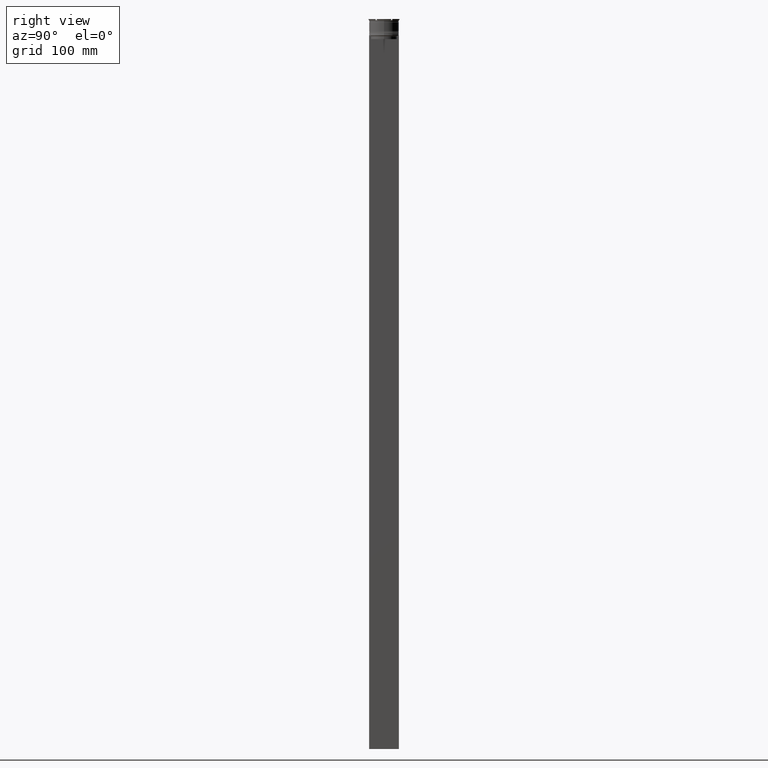
[diagram: clean part render]
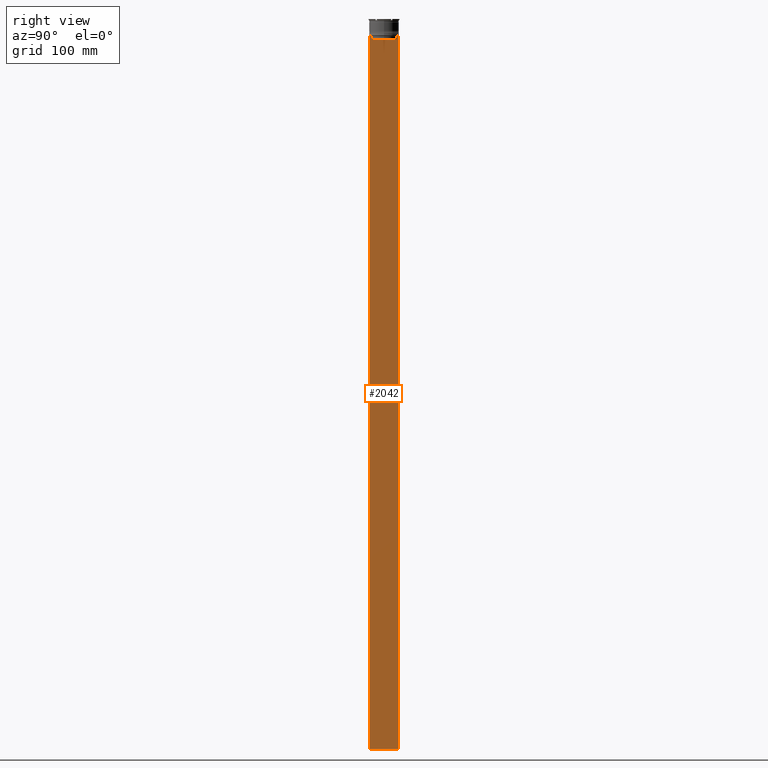
[diagram: same view with one face highlighted and labeled with its STEP entity id]
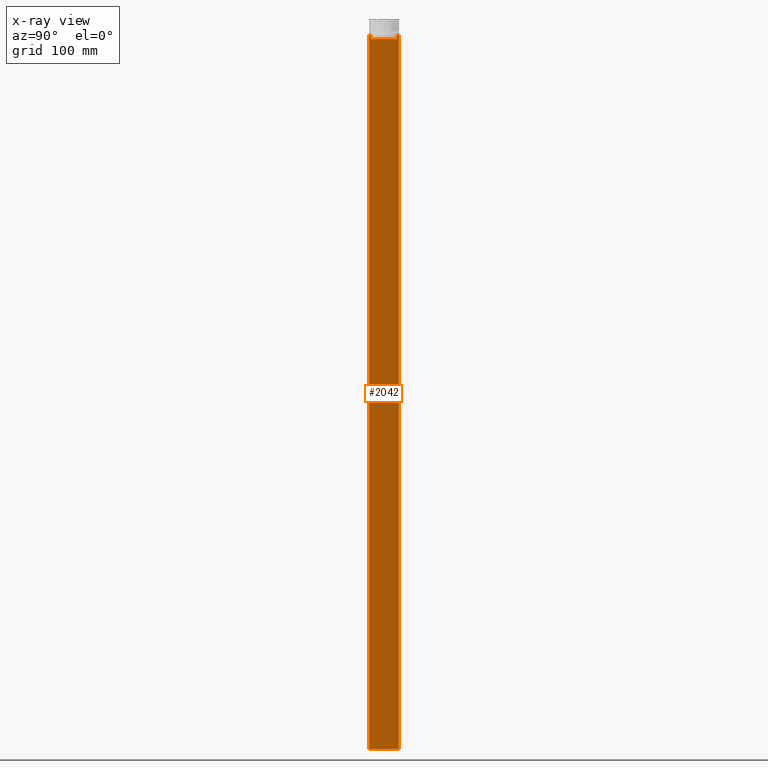
[diagram: x-ray of the same camera — body ghosted, the highlighted face saturated]
A machine part, right view. The second image highlights one B-rep face of the part: STEP entity #2042.
The next image is the same camera in x-ray: the body ghosted, the highlighted face saturated — about 0% of this face is hidden behind the body in this view.
In plain terms, the highlighted planar face has unit normal (-1, 0, 0).
Its self-contained STEP definition (entity closure, byte-faithful):
#9 = CARTESIAN_POINT ( 'NONE',  ( 0.5000000000000000000, 11.05536450345590538, -14.33333719074559376 ) ) ;
#42 = CARTESIAN_POINT ( 'NONE',  ( 0.5000000000000000000, 11.38902980942626719, -14.00000000000000178 ) ) ;
#80 = VERTEX_POINT ( 'NONE', #873 ) ;
#150 = ORIENTED_EDGE ( 'NONE', *, *, #2758, .T. ) ;
#330 = DIRECTION ( 'NONE',  ( 0.000000000000000000, -1.000000000000000000, 0.000000000000000000 ) ) ;
#335 = VERTEX_POINT ( 'NONE', #2355 ) ;
#357 = CARTESIAN_POINT ( 'NONE',  ( 0.5000000000000000000, 10.88852607105296322, -14.50000000000000000 ) ) ;
#370 = ORIENTED_EDGE ( 'NONE', *, *, #438, .T. ) ;
#394 = ORIENTED_EDGE ( 'NONE', *, *, #2616, .F. ) ;
#399 = EDGE_CURVE ( 'NONE', #335, #2804, #2825, .T. ) ;
#430 = CARTESIAN_POINT ( 'NONE',  ( 0.5000000000000000000, 10.88852607105296144, -17.00000000000000000 ) ) ;
#438 = EDGE_CURVE ( 'NONE', #1052, #571, #842, .T. ) ;
#483 = ORIENTED_EDGE ( 'NONE', *, *, #2317, .T. ) ;
#508 = ORIENTED_EDGE ( 'NONE', *, *, #1650, .T. ) ;
#512 = CARTESIAN_POINT ( 'NONE',  ( 0.5000000000000000000, 11.38902980942626719, -14.00000000000000178 ) ) ;
#545 = CARTESIAN_POINT ( 'NONE',  ( 0.5000000000000000000, 12.38991525394746773, -14.00000000000000178 ) ) ;
#563 = LINE ( 'NONE', #1503, #891 ) ;
#571 = VERTEX_POINT ( 'NONE', #2878 ) ;
#620 = VERTEX_POINT ( 'NONE', #357 ) ;
#641 = CARTESIAN_POINT ( 'NONE',  ( 0.5000000000000000000, 12.50000000000000711, -614.0000000000000000 ) ) ;
#647 = LINE ( 'NONE', #2026, #2675 ) ;
#668 = VECTOR ( 'NONE', #330, 1000.000000000000000 ) ;
#669 = ORIENTED_EDGE ( 'NONE', *, *, #1095, .T. ) ;
#692 = VERTEX_POINT ( 'NONE', #512 ) ;
#732 = CARTESIAN_POINT ( 'NONE',  ( 0.5000000000000000000, -12.49999999999999289, 11.01999200639360765 ) ) ;
#739 = EDGE_CURVE ( 'NONE', #2804, #692, #2542, .T. ) ;
#752 = VECTOR ( 'NONE', #1370, 1000.000000000000000 ) ;
#782 = DIRECTION ( 'NONE',  ( 0.000000000000000000, 0.000000000000000000, 1.000000000000000000 ) ) ;
#817 = DIRECTION ( 'NONE',  ( 0.000000000000000000, -1.000000000000000000, 0.000000000000000000 ) ) ;
#826 = LINE ( 'NONE', #2611, #1547 ) ;
#842 = LINE ( 'NONE', #1472, #1924 ) ;
#845 = AXIS2_PLACEMENT_3D ( 'NONE', #2152, #2790, #782 ) ;
#851 = ORIENTED_EDGE ( 'NONE', *, *, #1058, .T. ) ;
#866 = VERTEX_POINT ( 'NONE', #1066 ) ;
#873 = CARTESIAN_POINT ( 'NONE',  ( 0.5000000000000000000, -12.49999999999999289, -614.0000000000000000 ) ) ;
#882 = CARTESIAN_POINT ( 'NONE',  ( 0.5000000000000000000, 10.88852607105296322, 0.000000000000000000 ) ) ;
#891 = VECTOR ( 'NONE', #1462, 1000.000000000000000 ) ;
#956 = CARTESIAN_POINT ( 'NONE',  ( 0.5000000000000000000, -10.88852607105296144, -17.00000000000000000 ) ) ;
#981 = CARTESIAN_POINT ( 'NONE',  ( 0.5000000000000000000, -10.88852607105296322, -14.50000000000000000 ) ) ;
#1052 = VERTEX_POINT ( 'NONE', #956 ) ;
#1058 = EDGE_CURVE ( 'NONE', #1159, #80, #1677, .T. ) ;
#1066 = CARTESIAN_POINT ( 'NONE',  ( 0.5000000000000000000, -11.38902980942626719, -14.00000000000000178 ) ) ;
#1095 = EDGE_CURVE ( 'NONE', #571, #866, #2425, .T. ) ;
#1124 = CARTESIAN_POINT ( 'NONE',  ( 0.5000000000000000000, 10.88852607105296322, -14.50000000000000000 ) ) ;
#1159 = VERTEX_POINT ( 'NONE', #2638 ) ;
#1207 = CARTESIAN_POINT ( 'NONE',  ( 0.5000000000000000000, -12.49999999999999289, -14.00000000000000178 ) ) ;
#1250 = DIRECTION ( 'NONE',  ( 0.000000000000000000, 0.000000000000000000, -1.000000000000000000 ) ) ;
#1370 = DIRECTION ( 'NONE',  ( 0.000000000000000000, -1.000000000000000000, 0.000000000000000000 ) ) ;
#1384 = EDGE_LOOP ( 'NONE', ( #2692, #1432, #1854, #483, #370, #669, #150, #508, #851, #1697, #394, #2282 ) ) ;
#1392 = CARTESIAN_POINT ( 'NONE',  ( 0.5000000000000000000, 10.90000000000000213, -17.00000000000000000 ) ) ;
#1397 = EDGE_CURVE ( 'NONE', #692, #620, #1478, .T. ) ;
#1420 = VERTEX_POINT ( 'NONE', #641 ) ;
#1432 = ORIENTED_EDGE ( 'NONE', *, *, #1397, .T. ) ;
#1443 = DIRECTION ( 'NONE',  ( -0.000000000000000000, -0.000000000000000000, 1.000000000000000000 ) ) ;
#1462 = DIRECTION ( 'NONE',  ( 0.000000000000000000, -1.000000000000000000, 0.000000000000000000 ) ) ;
#1472 = CARTESIAN_POINT ( 'NONE',  ( 0.5000000000000000000, -10.88852607105296322, 0.000000000000000000 ) ) ;
#1478 = B_SPLINE_CURVE_WITH_KNOTS ( 'NONE', 3,
 ( #42, #2266, #9, #1124 ),
 .UNSPECIFIED., .F., .F.,
 ( 4, 4 ),
 ( 0.01935560801904634073, 0.02006307108468586772 ),
 .UNSPECIFIED. ) ;
#1503 = CARTESIAN_POINT ( 'NONE',  ( 0.5000000000000000000, -12.49999999999999289, -14.00000000000000178 ) ) ;
#1547 = VECTOR ( 'NONE', #1250, 1000.000000000000000 ) ;
#1616 = VERTEX_POINT ( 'NONE', #2573 ) ;
#1623 = CARTESIAN_POINT ( 'NONE',  ( 0.5000000000000000000, -11.38902980942626719, -14.00000000000000178 ) ) ;
#1626 = LINE ( 'NONE', #1392, #752 ) ;
#1643 = VECTOR ( 'NONE', #1770, 1000.000000000000000 ) ;
#1650 = EDGE_CURVE ( 'NONE', #1616, #1159, #563, .T. ) ;
#1660 = LINE ( 'NONE', #2556, #2578 ) ;
#1671 = DIRECTION ( 'NONE',  ( 0.000000000000000000, -1.000000000000000000, 0.000000000000000000 ) ) ;
#1677 = LINE ( 'NONE', #732, #2435 ) ;
#1697 = ORIENTED_EDGE ( 'NONE', *, *, #1882, .T. ) ;
#1770 = DIRECTION ( 'NONE',  ( 0.000000000000000000, 0.000000000000000000, -1.000000000000000000 ) ) ;
#1854 = ORIENTED_EDGE ( 'NONE', *, *, #2274, .T. ) ;
#1869 = CARTESIAN_POINT ( 'NONE',  ( 0.5000000000000000000, -11.05536450423839234, -14.33333718996393102 ) ) ;
#1879 = DIRECTION ( 'NONE',  ( 0.000000000000000000, 1.000000000000000000, 0.000000000000000000 ) ) ;
#1882 = EDGE_CURVE ( 'NONE', #80, #1420, #1660, .T. ) ;
#1898 = DIRECTION ( 'NONE',  ( 0.000000000000000000, 0.000000000000000000, -1.000000000000000000 ) ) ;
#1905 = CARTESIAN_POINT ( 'NONE',  ( 0.5000000000000000000, -12.49999999999999289, -14.00000000000000178 ) ) ;
#1924 = VECTOR ( 'NONE', #1443, 1000.000000000000000 ) ;
#2026 = CARTESIAN_POINT ( 'NONE',  ( 0.5000000000000000000, -12.49999999999999289, -14.00000000000000178 ) ) ;
#2042 = ADVANCED_FACE ( 'NONE', ( #2630 ), #2363, .F. ) ;
#2152 = CARTESIAN_POINT ( 'NONE',  ( 0.5000000000000000000, -12.49999999999999289, 11.01999200639360765 ) ) ;
#2176 = VERTEX_POINT ( 'NONE', #430 ) ;
#2266 = CARTESIAN_POINT ( 'NONE',  ( 0.5000000000000000000, 11.22219891375843304, -14.16667035472756808 ) ) ;
#2274 = EDGE_CURVE ( 'NONE', #620, #2176, #2659, .T. ) ;
#2282 = ORIENTED_EDGE ( 'NONE', *, *, #399, .T. ) ;
#2300 = CARTESIAN_POINT ( 'NONE',  ( 0.5000000000000000000, -11.22219891450652973, -14.16667035398018903 ) ) ;
#2317 = EDGE_CURVE ( 'NONE', #2176, #1052, #1626, .T. ) ;
#2349 = VECTOR ( 'NONE', #817, 1000.000000000000000 ) ;
#2355 = CARTESIAN_POINT ( 'NONE',  ( 0.5000000000000000000, 12.50000000000000711, -14.00000000000000178 ) ) ;
#2363 = PLANE ( 'NONE',  #845 ) ;
#2425 = B_SPLINE_CURVE_WITH_KNOTS ( 'NONE', 3,
 ( #981, #1869, #2300, #1623 ),
 .UNSPECIFIED., .F., .F.,
 ( 4, 4 ),
 ( 0.05041323384703226551, 0.05112713601261605068 ),
 .UNSPECIFIED. ) ;
#2435 = VECTOR ( 'NONE', #1898, 1000.000000000000000 ) ;
#2542 = LINE ( 'NONE', #1207, #668 ) ;
#2556 = CARTESIAN_POINT ( 'NONE',  ( 0.5000000000000000000, -12.49999999999999289, -614.0000000000000000 ) ) ;
#2573 = CARTESIAN_POINT ( 'NONE',  ( 0.5000000000000000000, -12.38991525394746773, -14.00000000000000178 ) ) ;
#2578 = VECTOR ( 'NONE', #1879, 1000.000000000000000 ) ;
#2611 = CARTESIAN_POINT ( 'NONE',  ( 0.5000000000000000000, 12.50000000000000711, 11.01999200639360765 ) ) ;
#2616 = EDGE_CURVE ( 'NONE', #335, #1420, #826, .T. ) ;
#2630 = FACE_OUTER_BOUND ( 'NONE', #1384, .T. ) ;
#2638 = CARTESIAN_POINT ( 'NONE',  ( 0.5000000000000000000, -12.49999999999999289, -14.00000000000000178 ) ) ;
#2659 = LINE ( 'NONE', #882, #1643 ) ;
#2675 = VECTOR ( 'NONE', #1671, 1000.000000000000000 ) ;
#2692 = ORIENTED_EDGE ( 'NONE', *, *, #739, .T. ) ;
#2758 = EDGE_CURVE ( 'NONE', #866, #1616, #647, .T. ) ;
#2790 = DIRECTION ( 'NONE',  ( -1.000000000000000000, 0.000000000000000000, 0.000000000000000000 ) ) ;
#2804 = VERTEX_POINT ( 'NONE', #545 ) ;
#2825 = LINE ( 'NONE', #1905, #2349 ) ;
#2878 = CARTESIAN_POINT ( 'NONE',  ( 0.5000000000000000000, -10.88852607105296322, -14.50000000000000000 ) ) ;